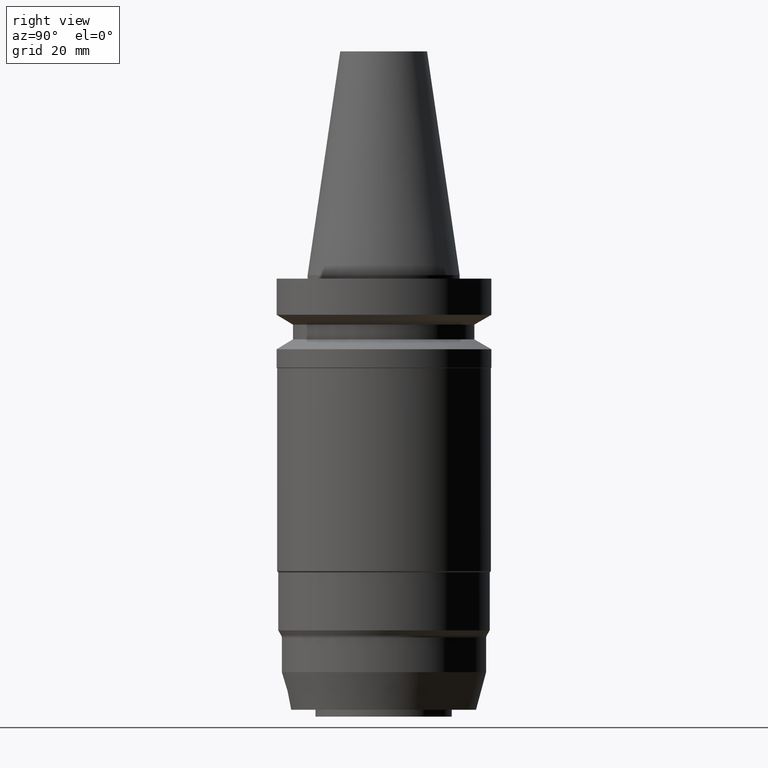
[diagram: clean part render]
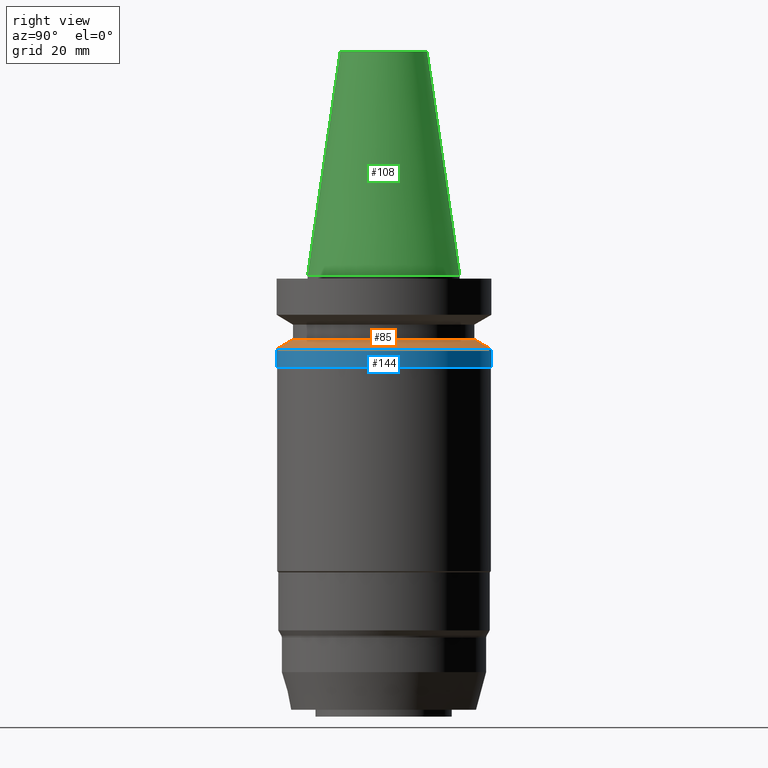
[diagram: same view with three faces highlighted in distinct colors, each labeled with its STEP entity id]
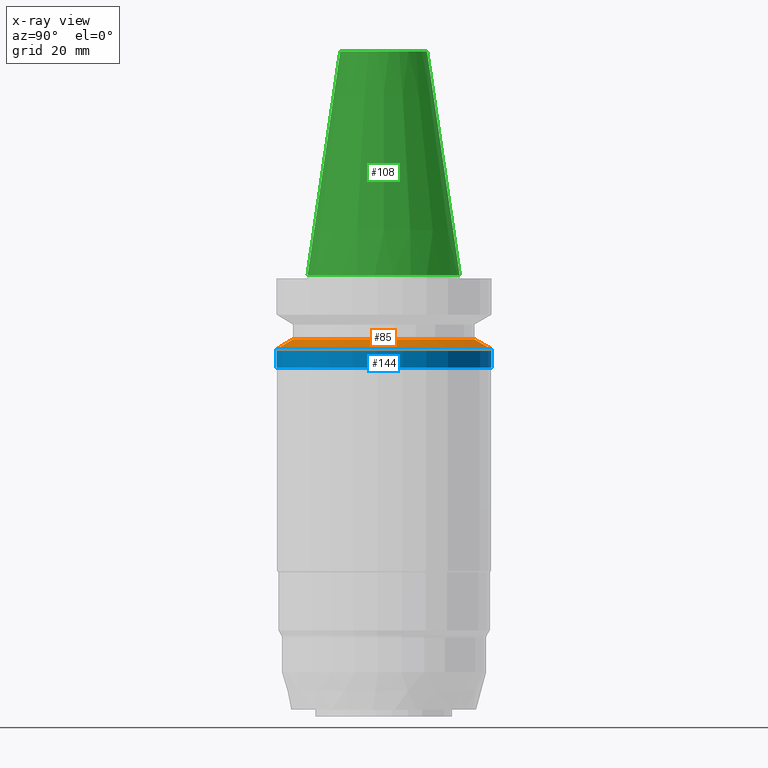
[diagram: x-ray of the same camera — body ghosted, the three highlighted faces saturated]
A machine part, right view with three faces highlighted in distinct colors.
The next image is the same camera in x-ray (body ghosted, the three faces saturated) — at least one of them is partly hidden behind the body in this view.
Their STEP definitions:

[orange] entity #85 — the highlighted conical surface has half-angle 60 deg.
#85=ADVANCED_FACE('Unnamed[1]',(#213,#214),#215,.T.);
#95=EDGE_CURVE('Unnamed[1]',#229,#229,#230,.T.);
#112=EDGE_CURVE('Unnamed[1]',#256,#256,#257,.T.);
#213=FACE_BOUND('',#386,.T.);
#214=FACE_BOUND('',#387,.T.);
#215=CONICAL_SURFACE('',#388,29.0000000000003,1.04719755119651);
#229=VERTEX_POINT('',#406);
#230=CIRCLE('',#407,26.5);
#256=VERTEX_POINT('',#440);
#257=CIRCLE('',#441,31.5000000000007);
#386=EDGE_LOOP('',(#578));
#387=EDGE_LOOP('',(#579));
#388=AXIS2_PLACEMENT_3D('',#580,#581,#582);
#406=CARTESIAN_POINT('',(1.1479681728942E-015,26.5,-18.7477430013855));
#407=AXIS2_PLACEMENT_3D('',#597,#598,#599);
#440=CARTESIAN_POINT('',(1.32473071268175E-015,31.5000000000008,-21.6344943473347));
#441=AXIS2_PLACEMENT_3D('',#627,#628,#629);
#578=ORIENTED_EDGE('',*,*,#112,.F.);
#579=ORIENTED_EDGE('',*,*,#95,.T.);
#580=CARTESIAN_POINT('',(1.23634944278797E-015,7.22088606355022E-014,-20.1911186743601));
#581=DIRECTION('',(6.12323399573677E-017,-5.72747493517937E-017,-1.0));
#582=DIRECTION('',(-1.32008580748086E-033,1.0,-5.72747493517937E-017));
#597=CARTESIAN_POINT('',(1.1479681728942E-015,7.22915296153922E-014,-18.7477430013855));
#598=DIRECTION('',(6.12323399573677E-017,-5.72747493518113E-017,-1.0));
#599=DIRECTION('',(-1.32008580748438E-033,1.0,-5.72747493518113E-017));
#627=CARTESIAN_POINT('',(1.32473071268175E-015,7.21261916556122E-014,-21.6344943473347));
#628=DIRECTION('',(6.12323399573677E-017,-5.72747493517789E-017,-1.0));
#629=DIRECTION('',(-1.32008580748929E-033,1.0,-5.72747493517789E-017));

[blue] entity #144 — the highlighted cylindrical surface (bore or boss wall) has radius 31.5 mm, axis along (0, -0, -1).
#97=EDGE_CURVE('Unnamed[1]',#232,#232,#233,.T.);
#112=EDGE_CURVE('Unnamed[1]',#256,#256,#257,.T.);
#144=ADVANCED_FACE('Unnamed[1]',(#306,#307),#308,.T.);
#232=VERTEX_POINT('',#410);
#233=CIRCLE('',#411,31.5000000000005);
#256=VERTEX_POINT('',#440);
#257=CIRCLE('',#441,31.5000000000007);
#306=FACE_BOUND('',#503,.T.);
#307=FACE_BOUND('',#504,.T.);
#308=CYLINDRICAL_SURFACE('',#505,31.5000000000006);
#410=CARTESIAN_POINT('',(1.65353521374986E-015,31.5000000000005,-27.004279354686));
#411=AXIS2_PLACEMENT_3D('',#600,#601,#602);
#440=CARTESIAN_POINT('',(1.32473071268175E-015,31.5000000000008,-21.6344943473347));
#441=AXIS2_PLACEMENT_3D('',#627,#628,#629);
#503=EDGE_LOOP('',(#682));
#504=EDGE_LOOP('',(#683));
#505=AXIS2_PLACEMENT_3D('',#684,#685,#686);
#600=CARTESIAN_POINT('',(1.65353521374986E-015,7.18186385652435E-014,-27.004279354686));
#601=DIRECTION('',(6.12323399573677E-017,-5.72747493517794E-017,-1.0));
#602=DIRECTION('',(-1.32008580750069E-033,1.0,-5.72747493517794E-017));
#627=CARTESIAN_POINT('',(1.32473071268175E-015,7.21261916556122E-014,-21.6344943473347));
#628=DIRECTION('',(6.12323399573677E-017,-5.72747493517789E-017,-1.0));
#629=DIRECTION('',(-1.32008580748929E-033,1.0,-5.72747493517789E-017));
#682=ORIENTED_EDGE('',*,*,#97,.F.);
#683=ORIENTED_EDGE('',*,*,#112,.T.);
#684=CARTESIAN_POINT('',(1.4891329632158E-015,7.19724151104278E-014,-24.3193868510103));
#685=DIRECTION('',(6.12323399573677E-017,-5.72747493517792E-017,-1.0));
#686=DIRECTION('',(-1.32008580748929E-033,1.0,-5.72747493517792E-017));

[green] entity #108 — the highlighted conical surface has half-angle 8.297 deg.
#67=EDGE_CURVE('Unnamed[1]',#186,#186,#187,.T.);
#108=ADVANCED_FACE('Unnamed[1]',(#249,#250),#251,.T.);
#134=EDGE_CURVE('Unnamed[1]',#291,#291,#292,.T.);
#186=VERTEX_POINT('',#352);
#187=CIRCLE('',#353,12.6875000000001);
#249=FACE_BOUND('',#431,.T.);
#250=FACE_BOUND('',#432,.T.);
#251=CONICAL_SURFACE('',#433,17.45625,0.144812498238936);
#291=VERTEX_POINT('',#484);
#292=CIRCLE('',#485,22.225);
#352=CARTESIAN_POINT('',(-4.00459503321185E-015,12.6875000000002,65.4000000000001));
#353=AXIS2_PLACEMENT_3D('',#548,#549,#550);
#431=EDGE_LOOP('',(#619));
#432=EDGE_LOOP('',(#620));
#433=AXIS2_PLACEMENT_3D('',#621,#622,#623);
#484=CARTESIAN_POINT('',(1.71319921032766E-029,22.2250000000001,-2.8153873565375E-013));
#485=AXIS2_PLACEMENT_3D('',#666,#667,#668);
#548=CARTESIAN_POINT('',(-4.00459503321185E-015,7.71110705043098E-014,65.4000000000001));
#549=DIRECTION('',(6.12323399573677E-017,-5.72747493517302E-017,-1.0));
#550=DIRECTION('',(-1.32008580750384E-033,1.0,-5.72747493517302E-017));
#619=ORIENTED_EDGE('',*,*,#134,.F.);
#620=ORIENTED_EDGE('',*,*,#67,.T.);
#621=CARTESIAN_POINT('',(-2.00229751660592E-015,7.52381862005084E-014,32.6999999999999));
#622=DIRECTION('',(6.12323399573677E-017,-5.72747493518002E-017,-1.0));
#623=DIRECTION('',(-1.32008580747947E-033,1.0,-5.72747493518002E-017));
#666=CARTESIAN_POINT('',(1.74032777401202E-029,7.3365301896707E-014,-2.8421709430404E-013));
#667=DIRECTION('',(6.12323399573677E-017,-5.72747493516947E-017,-1.0));
#668=DIRECTION('',(-1.32008580749784E-033,1.0,-5.72747493516947E-017));